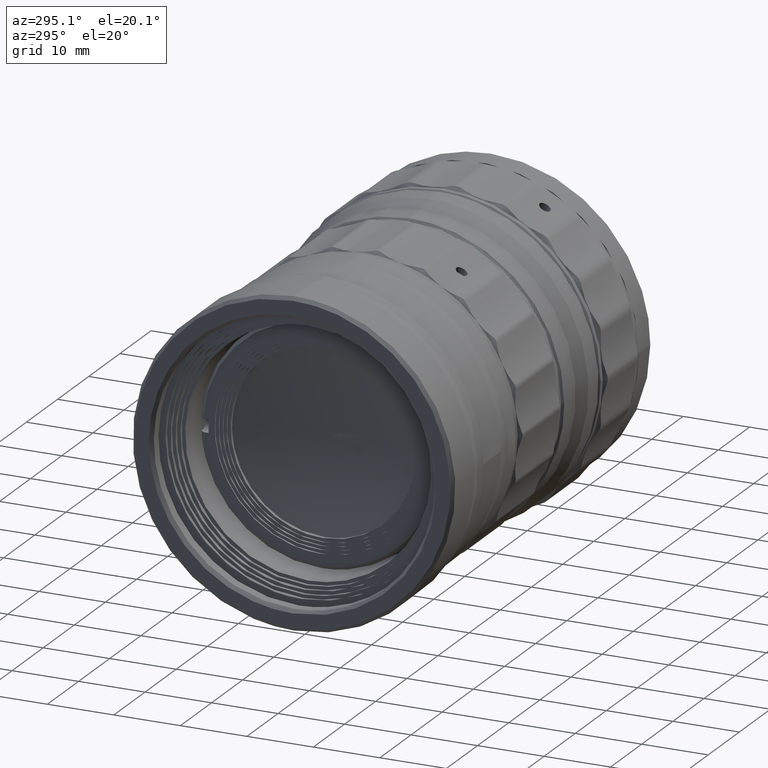
[diagram: clean part render]
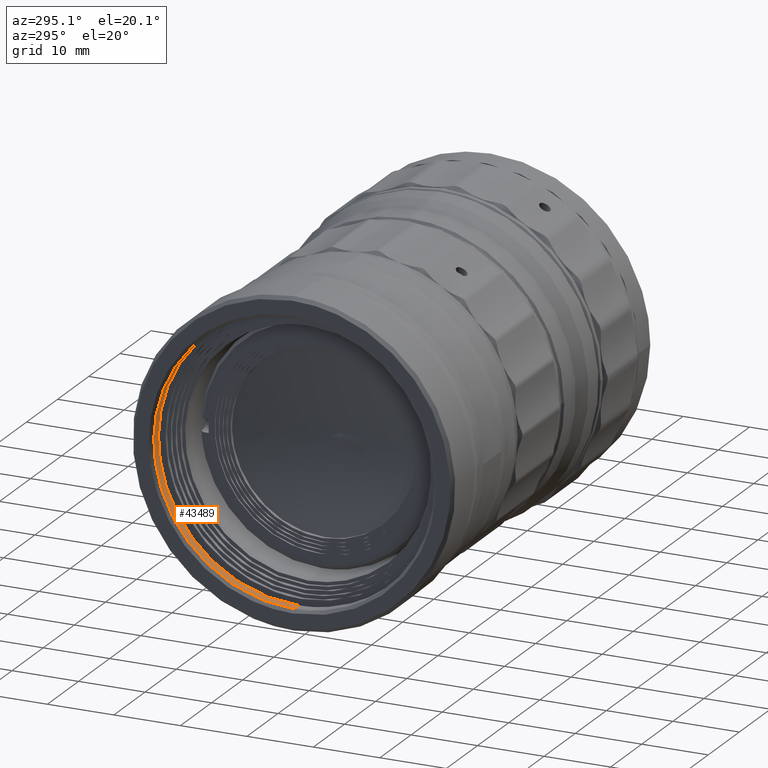
[diagram: same view with one face highlighted and labeled with its STEP entity id]
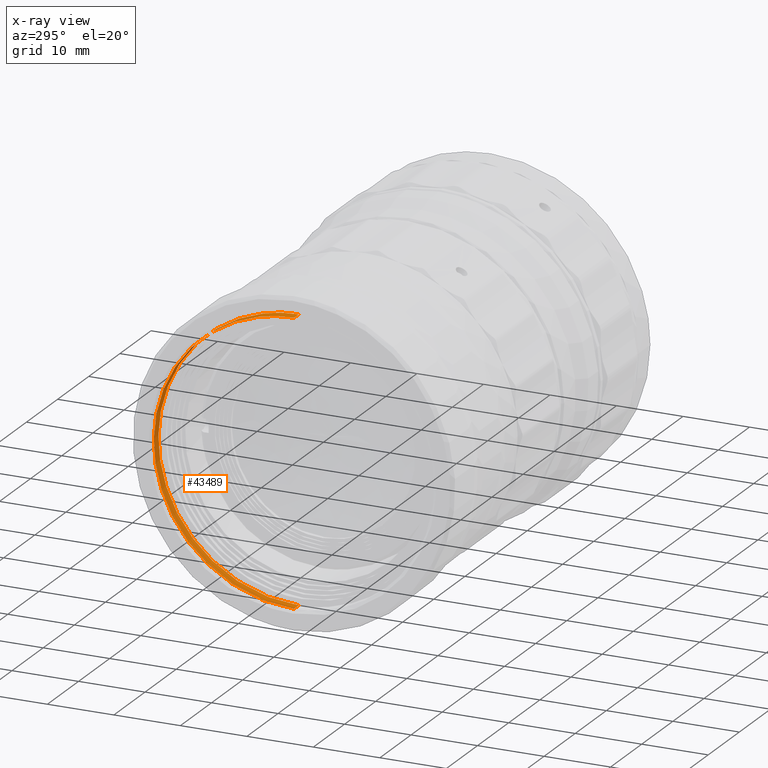
[diagram: x-ray of the same camera — body ghosted, the highlighted face saturated]
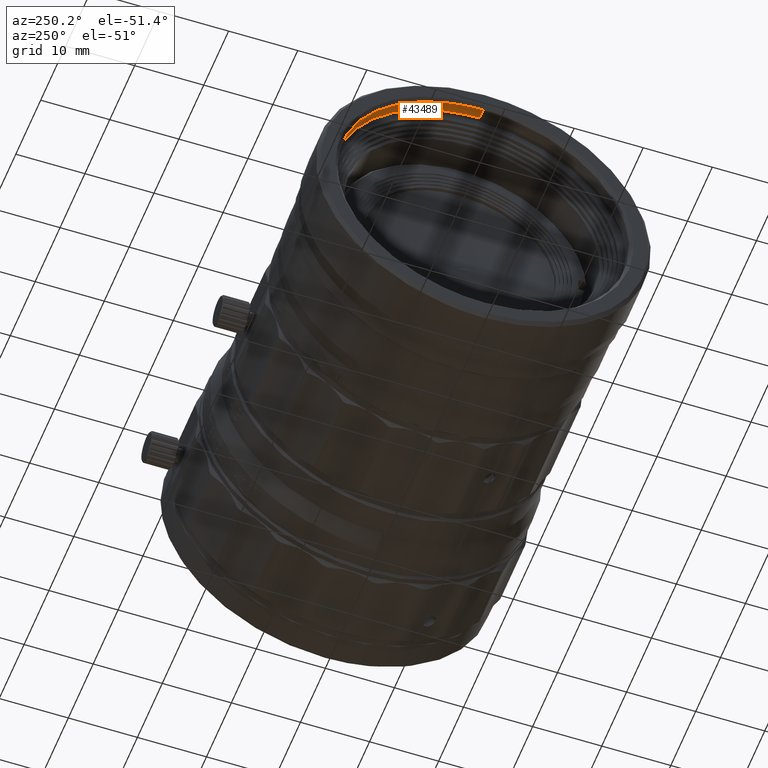
[diagram: same view with one face highlighted and labeled with its STEP entity id]
A machine part, auxiliary view. The second image highlights one B-rep face of the part: STEP entity #43489.
The next image is the same camera in x-ray: the body ghosted, the highlighted face saturated — about 0% of this face is hidden behind the body in this view.
A second angle (auxiliary view) of the same face is appended — the face is thin or edge-on in the first view.
In plain terms, the highlighted face is a freeform B-spline surface patch.
Its self-contained STEP definition (entity closure, byte-faithful):
#1326 = CARTESIAN_POINT ( 'NONE',  ( -2.000000000000000000, -1.263090793042625925E-09, -21.10000000157145195 ) ) ;
#1941 = CARTESIAN_POINT ( 'NONE',  ( -3.500004950999999753, -5.275000469858520587E-09, 21.10000037200000023 ) ) ;
#2202 = CARTESIAN_POINT ( 'NONE',  ( -3.500004950999999753, 0.0000000000000000000, -21.10000000000000142 ) ) ;
#2639 = CARTESIAN_POINT ( 'NONE',  ( -3.500004951000000197, 12.36009382728239103, 21.10000000507019635 ) ) ;
#7187 = EDGE_LOOP ( 'NONE', ( #46618, #16948, #41451, #31261 ) ) ;
#7824 = CARTESIAN_POINT ( 'NONE',  ( -2.000000000000000000, 12.36009382728239991, 21.10000000507019635 ) ) ;
#8133 = CARTESIAN_POINT ( 'NONE',  ( -3.500004950999999753, -5.275000469858520587E-09, 21.10000037200000023 ) ) ;
#9535 = CARTESIAN_POINT ( 'NONE',  ( -2.000000000000000000, 21.10000000253510066, -12.36009383161007413 ) ) ;
#10131 = CARTESIAN_POINT ( 'NONE',  ( -3.500004950999999753, -5.275000469858520587E-09, 21.10000037200000023 ) ) ;
#11069 = VERTEX_POINT ( 'NONE', #1941 ) ;
#11216 = EDGE_CURVE ( 'NONE', #11069, #33860, #25387, .T. ) ;
#12474 = CARTESIAN_POINT ( 'NONE',  ( -3.500004951000001086, 21.10000074653509827, 12.36009426743518880 ) ) ;
#14470 =( BOUNDED_CURVE ( )  B_SPLINE_CURVE ( 3, ( #51853, #78259, #18963, #71753, #12474, #38881, #8133 ),
 .UNSPECIFIED., .F., .F. ) 
 B_SPLINE_CURVE_WITH_KNOTS ( ( 4, 3, 4 ),
 ( -3.141592653589795336, -1.570796326794897668, 0.0000000000000000000 ),
 .UNSPECIFIED. ) 
 CURVE ( )  GEOMETRIC_REPRESENTATION_ITEM ( )  RATIONAL_B_SPLINE_CURVE ( ( 1.000000000000000000, 0.8047378540760217192, 0.8047378540760217192, 1.000000000000000000, 0.8047378540760217192, 0.8047378540760217192, 1.000000000000000000 ) ) 
 REPRESENTATION_ITEM ( '' )  );
#16438 = CARTESIAN_POINT ( 'NONE',  ( -2.000000000000000000, 12.36009382728239103, 21.10000000507019635 ) ) ;
#16948 = ORIENTED_EDGE ( 'NONE', *, *, #41098, .T. ) ;
#18963 = CARTESIAN_POINT ( 'NONE',  ( -3.500004951000002862, 21.10000074146490334, -12.36009427609054256 ) ) ;
#21251 = CARTESIAN_POINT ( 'NONE',  ( -2.000000000000000000, -1.263090793042625925E-09, -21.10000000157145195 ) ) ;
#22077 = CARTESIAN_POINT ( 'NONE',  ( -2.000000000000000000, 12.36009383593776079, -21.10000000000000142 ) ) ;
#23350 = CARTESIAN_POINT ( 'NONE',  ( -3.500004951000000197, 21.10000000253510066, -12.36009383161007413 ) ) ;
#25387 = B_SPLINE_CURVE_WITH_KNOTS ( 'NONE', 1,
 ( #10131, #75028 ),
 .UNSPECIFIED., .F., .F.,
 ( 2, 2 ),
 ( -1.000000000000000000, 0.0000000000000000000 ),
 .UNSPECIFIED. ) ;
#28579 = CARTESIAN_POINT ( 'NONE',  ( -2.000000000000000000, 21.10000000000000142, 4.327682341673487887E-09 ) ) ;
#29001 = CARTESIAN_POINT ( 'NONE',  ( -3.500004950999999753, -8.655364683346975773E-09, 21.10000000000000142 ) ) ;
#29425 = CARTESIAN_POINT ( 'NONE',  ( -2.000000000000000000, 0.0000000000000000000, -21.10000000000000142 ) ) ;
#29875 =( BOUNDED_CURVE ( )  B_SPLINE_CURVE ( 3, ( #1326, #73581, #53678, #73152, #40265, #7824, #34198 ),
 .UNSPECIFIED., .F., .F. ) 
 B_SPLINE_CURVE_WITH_KNOTS ( ( 4, 3, 4 ),
 ( -1.000000000000000000, -0.5000000000000000000, 0.0000000000000000000 ),
 .UNSPECIFIED. ) 
 CURVE ( )  GEOMETRIC_REPRESENTATION_ITEM ( )  RATIONAL_B_SPLINE_CURVE ( ( 1.000000000000000000, 0.8047378540760217192, 0.8047378540760217192, 1.000000000000000000, 0.8047378540760217192, 0.8047378540760217192, 1.000000000000000000 ) ) 
 REPRESENTATION_ITEM ( '' )  );
#31261 = ORIENTED_EDGE ( 'NONE', *, *, #42144, .F. ) ;
#32725 = CARTESIAN_POINT ( 'NONE',  ( -2.000000000000000000, -1.263090793042625925E-09, -21.10000000157145195 ) ) ;
#33860 = VERTEX_POINT ( 'NONE', #79005 ) ;
#34198 = CARTESIAN_POINT ( 'NONE',  ( -2.000000000000000000, -5.770243122231319664E-09, 21.10000000157145195 ) ) ;
#37036 = EDGE_CURVE ( 'NONE', #67428, #51322, #81000, .T. ) ;
#38881 = CARTESIAN_POINT ( 'NONE',  ( -3.500004951000000197, 12.36009427176286657, 21.10000074400000258 ) ) ;
#40265 = CARTESIAN_POINT ( 'NONE',  ( -2.000000000000000000, 21.09999999746490928, 12.36009384026543323 ) ) ;
#41098 = EDGE_CURVE ( 'NONE', #67428, #33860, #29875, .T. ) ;
#41451 = ORIENTED_EDGE ( 'NONE', *, *, #11216, .F. ) ;
#41585 = CARTESIAN_POINT ( 'NONE',  ( -3.500004950999999753, -5.275000589052410453E-09, -21.10000037200000023 ) ) ;
#42144 = EDGE_CURVE ( 'NONE', #51322, #11069, #14470, .T. ) ;
#42828 = FACE_OUTER_BOUND ( 'NONE', #7187, .T. ) ;
#43489 = ADVANCED_FACE ( 'NONE', ( #42828 ), #49823, .T. ) ;
#46618 = ORIENTED_EDGE ( 'NONE', *, *, #37036, .F. ) ;
#48886 = CARTESIAN_POINT ( 'NONE',  ( -2.000000000000000000, 21.09999999746490573, 12.36009384026544211 ) ) ;
#49823 =( BOUNDED_SURFACE ( )  B_SPLINE_SURFACE ( 1, 3, ( 
 ( #2202, #68809, #23350, #61906, #82190, #2639, #29001 ),
 ( #29425, #22077, #9535, #28579, #48886, #16438, #81353 ) ),
 .UNSPECIFIED., .F., .F., .F. ) 
 B_SPLINE_SURFACE_WITH_KNOTS ( ( 2, 2 ),
 ( 4, 3, 4 ),
 ( 0.0000000000000000000, 1.000000000000000000 ),
 ( 0.0000000000000000000, 0.5000000000000000000, 1.000000000000000000 ),
 .UNSPECIFIED. ) 
 GEOMETRIC_REPRESENTATION_ITEM ( )  RATIONAL_B_SPLINE_SURFACE ( (
 ( 1.000000000000000000, 0.8047378540760217192, 0.8047378540760217192, 1.000000000000000000, 0.8047378540760217192, 0.8047378540760217192, 1.000000000000000000),
 ( 1.000000000000000000, 0.8047378540760217192, 0.8047378540760217192, 1.000000000000000000, 0.8047378540760217192, 0.8047378540760217192, 1.000000000000000000) ) ) 
 REPRESENTATION_ITEM ( '' )  SURFACE ( )  );
#51322 = VERTEX_POINT ( 'NONE', #74647 ) ;
#51853 = CARTESIAN_POINT ( 'NONE',  ( -3.500004950999999753, -5.275000589052410453E-09, -21.10000037200000023 ) ) ;
#53678 = CARTESIAN_POINT ( 'NONE',  ( -2.000000000000000000, 21.10000000253509356, -12.36009383161007769 ) ) ;
#61906 = CARTESIAN_POINT ( 'NONE',  ( -3.500004950999999753, 21.10000000000000142, 4.327682341673487887E-09 ) ) ;
#67428 = VERTEX_POINT ( 'NONE', #32725 ) ;
#68809 = CARTESIAN_POINT ( 'NONE',  ( -3.500004951000000197, 12.36009383593776079, -21.10000000000000142 ) ) ;
#71753 = CARTESIAN_POINT ( 'NONE',  ( -3.500004951000001974, 21.10000074400000258, -4.327677809129109153E-09 ) ) ;
#73152 = CARTESIAN_POINT ( 'NONE',  ( -2.000000000000000000, 21.10000000000000142, 4.327677656532323638E-09 ) ) ;
#73581 = CARTESIAN_POINT ( 'NONE',  ( -2.000000000000000000, 12.36009383593775368, -21.10000000000000142 ) ) ;
#74647 = CARTESIAN_POINT ( 'NONE',  ( -3.500004950999999753, -5.275000589052410453E-09, -21.10000037200000023 ) ) ;
#75028 = CARTESIAN_POINT ( 'NONE',  ( -2.000000000000000000, -5.770243122231319664E-09, 21.10000000157145195 ) ) ;
#78259 = CARTESIAN_POINT ( 'NONE',  ( -3.500004951000004638, 12.36009426310750747, -21.10000074907019041 ) ) ;
#79005 = CARTESIAN_POINT ( 'NONE',  ( -2.000000000000000000, -5.770243122231319664E-09, 21.10000000157145195 ) ) ;
#81000 = B_SPLINE_CURVE_WITH_KNOTS ( 'NONE', 1,
 ( #21251, #41585 ),
 .UNSPECIFIED., .F., .F.,
 ( 2, 2 ),
 ( -1.000000000000000000, 0.0000000000000000000 ),
 .UNSPECIFIED. ) ;
#81353 = CARTESIAN_POINT ( 'NONE',  ( -2.000000000000000000, -8.655364683346975773E-09, 21.10000000000000142 ) ) ;
#82190 = CARTESIAN_POINT ( 'NONE',  ( -3.500004951000000197, 21.09999999746490573, 12.36009384026544211 ) ) ;